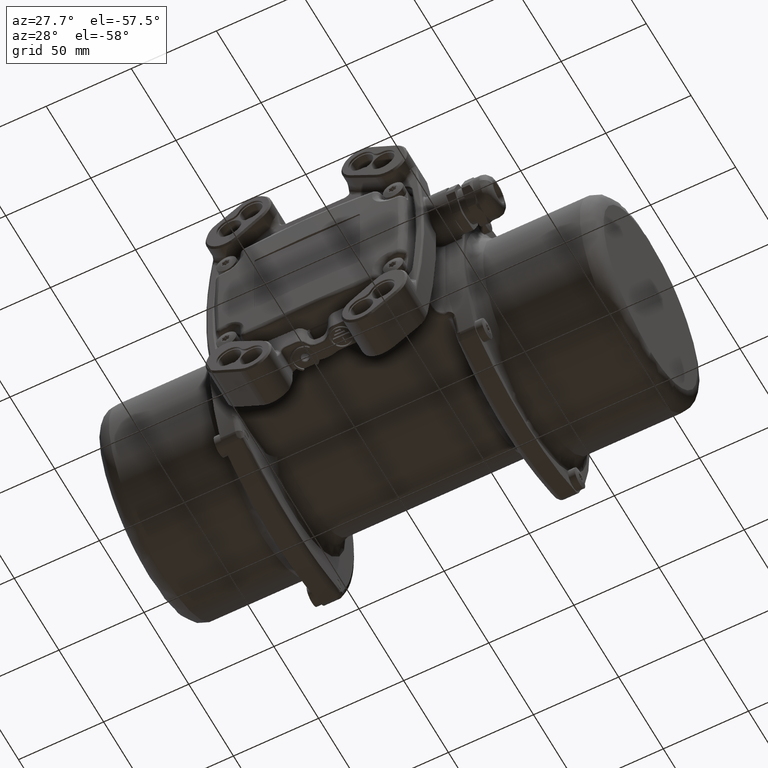
[diagram: clean part render]
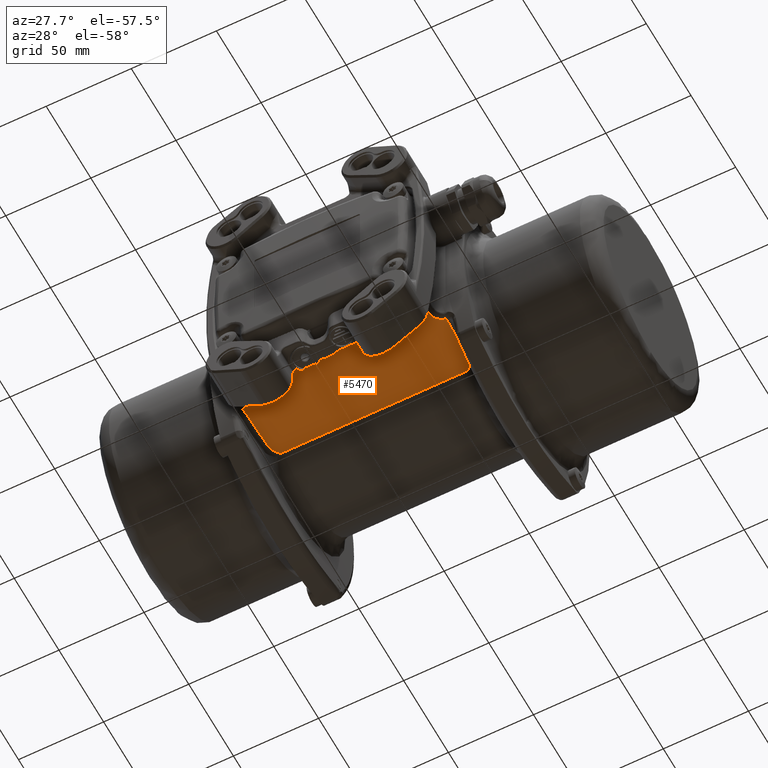
[diagram: same view with one face highlighted and labeled with its STEP entity id]
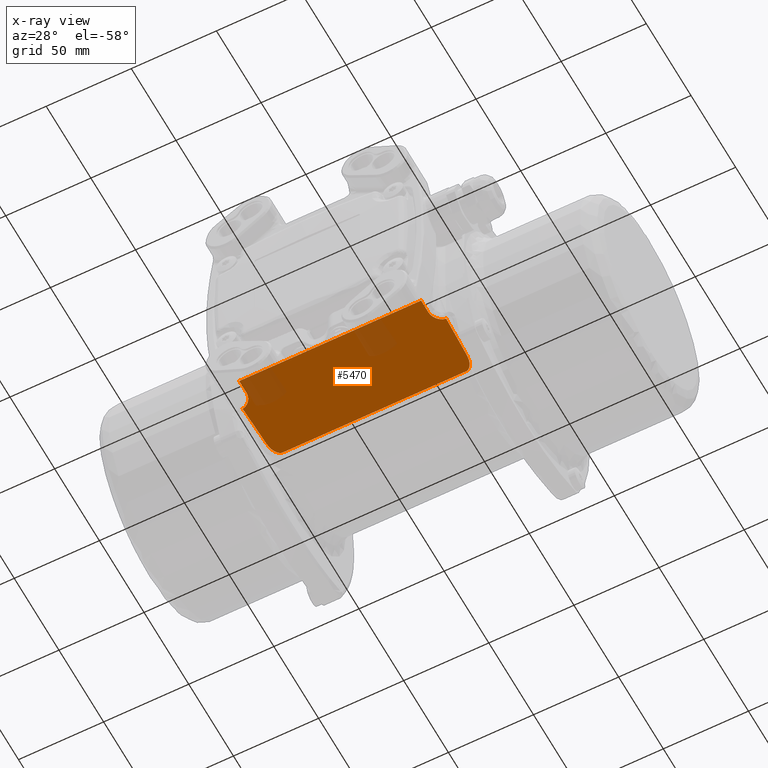
[diagram: x-ray of the same camera — body ghosted, the highlighted face saturated]
A machine part, auxiliary view. The second image highlights one B-rep face of the part: STEP entity #5470.
The next image is the same camera in x-ray: the body ghosted, the highlighted face saturated — about 11% of this face is hidden behind the body in this view.
In plain terms, the highlighted planar face has unit normal (-0, -0, 1).
Its self-contained STEP definition (entity closure, byte-faithful):
#1687 = CARTESIAN_POINT ( 'NONE',  ( 54.26904478347599800, -28.02733593268764900, -42.00000000000000000 ) ) ;
#1974 = CARTESIAN_POINT ( 'NONE',  ( 84.50000000000000000, -28.00000000000000000, -42.00000000000000000 ) ) ;
#2427 = CARTESIAN_POINT ( 'NONE',  ( 59.79435121141880000, -61.48735980314800300, -42.00000000000000000 ) ) ;
#2736 = CARTESIAN_POINT ( 'NONE',  ( -56.82736257883129800, -62.70393072351999600, -42.00000000000000000 ) ) ;
#3247 = CARTESIAN_POINT ( 'NONE',  ( -59.43756898926553600, -53.05175037227265000, -42.00000000000001400 ) ) ;
#3947 = CARTESIAN_POINT ( 'NONE',  ( 57.44151765997829500, -30.79220993703835100, -42.00000000000000000 ) ) ;
#4094 = CARTESIAN_POINT ( 'NONE',  ( -54.25871117828488400, -28.00000000000001400, -41.99999999999999300 ) ) ;
#5470 = ADVANCED_FACE ( 'NONE', ( #27812 ), #59558, .F. ) ;
#6380 = CARTESIAN_POINT ( 'NONE',  ( -58.75959325982411500, -35.09866240626386300, -41.99999999999999300 ) ) ;
#8603 = CARTESIAN_POINT ( 'NONE',  ( -55.71909170430350100, -28.67995840143574400, -41.99999999999998600 ) ) ;
#9171 = CARTESIAN_POINT ( 'NONE',  ( 58.89491927471750200, -61.69407372191539500, -42.00000000000000000 ) ) ;
#9906 = VECTOR ( 'NONE', #123664, 1000.000000000000000 ) ;
#10654 = CARTESIAN_POINT ( 'NONE',  ( 53.83392399097889600, -28.00000000000000000, -42.00000000000000000 ) ) ;
#10820 = CARTESIAN_POINT ( 'NONE',  ( -55.13841179301431300, -28.32637513241102300, -42.00000000000000000 ) ) ;
#10942 = VERTEX_POINT ( 'NONE', #65588 ) ;
#11007 =( BOUNDED_CURVE ( )  B_SPLINE_CURVE ( 3, ( #53230, #123250, #3247, #98340 ),
 .UNSPECIFIED., .F., .F. ) 
 B_SPLINE_CURVE_WITH_KNOTS ( ( 4, 4 ),
 ( 0.0000000000000000000, 1.000000000000000000 ),
 .UNSPECIFIED. ) 
 CURVE ( )  GEOMETRIC_REPRESENTATION_ITEM ( )  RATIONAL_B_SPLINE_CURVE ( ( 0.9999999679836042400, 0.9999999678338763500, 0.9999999676990050100, 0.9999999675891782000 ) ) 
 REPRESENTATION_ITEM ( '' )  );
#11485 = CARTESIAN_POINT ( 'NONE',  ( 55.31436037646639600, -64.10451902522780200, -42.00000000000000000 ) ) ;
#11793 = ORIENTED_EDGE ( 'NONE', *, *, #18064, .F. ) ;
#12622 = VERTEX_POINT ( 'NONE', #21879 ) ;
#13003 = CARTESIAN_POINT ( 'NONE',  ( 56.85878412433390100, -29.87825013822555000, -42.00000000000000000 ) ) ;
#13155 = CARTESIAN_POINT ( 'NONE',  ( -57.93021650183509100, -31.84259759304226000, -42.00000000000000000 ) ) ;
#13733 = CARTESIAN_POINT ( 'NONE',  ( 54.20126284571959700, -65.84102148313441200, -42.00000000000000000 ) ) ;
#13920 = CARTESIAN_POINT ( 'NONE',  ( 54.00000000000000000, -77.50000000000000000, -42.00000000000000000 ) ) ;
#14036 = CARTESIAN_POINT ( 'NONE',  ( -55.94512383386140200, -63.43393234368589600, -42.00000000000000000 ) ) ;
#14974 = VERTEX_POINT ( 'NONE', #125129 ) ;
#17327 = CARTESIAN_POINT ( 'NONE',  ( 53.42825951324709900, -85.50000000000000000, -42.00000000000000000 ) ) ;
#18064 = EDGE_CURVE ( 'NONE', #43394, #81832, #132749, .T. ) ;
#18290 = CARTESIAN_POINT ( 'NONE',  ( 53.42825951325999500, -68.95819422457270800, -42.00000000000000000 ) ) ;
#19813 = CARTESIAN_POINT ( 'NONE',  ( 56.72768731976910300, -29.70336242067885000, -42.00000000000000000 ) ) ;
#19968 = CARTESIAN_POINT ( 'NONE',  ( -57.70707798793059600, -31.33938022319496900, -42.00000000000000700 ) ) ;
#20560 = CARTESIAN_POINT ( 'NONE',  ( 58.25256476904660700, -61.93761853324269900, -42.00000000000000000 ) ) ;
#21879 = CARTESIAN_POINT ( 'NONE',  ( 58.82707166475169900, -36.17614713712605100, -42.00000000000000000 ) ) ;
#22059 = CARTESIAN_POINT ( 'NONE',  ( 55.83703367866000600, -28.76092886263929700, -42.00000000000000000 ) ) ;
#24408 = CARTESIAN_POINT ( 'NONE',  ( -57.52906512749966300, -30.97203903110125700, -42.00000000000000000 ) ) ;
#25478 = CARTESIAN_POINT ( 'NONE',  ( -53.57297445161820100, -67.58762612787461400, -42.00000000000000000 ) ) ;
#26603 = CARTESIAN_POINT ( 'NONE',  ( 58.27122766539199700, -32.79105150845985200, -42.00000000000000000 ) ) ;
#26752 = CARTESIAN_POINT ( 'NONE',  ( -55.40872773025710500, -28.47561109984306100, -42.00000000000000000 ) ) ;
#27644 = CARTESIAN_POINT ( 'NONE',  ( -55.31322817605450100, -64.10581828442009600, -42.00000000000000000 ) ) ;
#27812 = FACE_OUTER_BOUND ( 'NONE', #120966, .T. ) ;
#28598 = DIRECTION ( 'NONE',  ( -5.773171773799138800E-049, 1.000000000000000000, 2.042470651928919900E-017 ) ) ;
#28842 = CARTESIAN_POINT ( 'NONE',  ( 57.98708438775680200, -31.97468965698465500, -42.00000000000000000 ) ) ;
#28991 = CARTESIAN_POINT ( 'NONE',  ( -58.38251797364000600, -33.17328257990040900, -42.00000000000000000 ) ) ;
#29639 = CARTESIAN_POINT ( 'NONE',  ( 55.94780586918800200, -63.43139401440129900, -42.00000000000000000 ) ) ;
#30821 = ORIENTED_EDGE ( 'NONE', *, *, #60505, .F. ) ;
#30909 = EDGE_CURVE ( 'NONE', #118296, #87975, #33215, .T. ) ;
#31325 = CARTESIAN_POINT ( 'NONE',  ( -56.27514953493786700, -29.18617271111895700, -42.00000000000000000 ) ) ;
#31901 = CARTESIAN_POINT ( 'NONE',  ( 54.63626396028370600, -65.03215349386600500, -42.00000000000000000 ) ) ;
#32569 = ORIENTED_EDGE ( 'NONE', *, *, #100471, .F. ) ;
#33215 = B_SPLINE_CURVE_WITH_KNOTS ( 'NONE', 3,
 ( #67553, #44906, #6380, #74353, #101450, #87874, #96883, #115007, #124075, #28991, #60727, #13155, #103778, #19968, #99178, #38135, #117332, #33564, #24408, #51720, #139828, #40356, #63035, #94664, #103676, #42572, #130860, #72041, #92434, #31325, #56287, #69793, #110515, #121783, #78794, #8603, #26752, #49476, #35776, #10820, #90087, #53957, #133077, #4094, #119577 ),
 .UNSPECIFIED., .F., .F.,
 ( 4, 1, 1, 1, 1, 2, 2, 1, 1, 1, 1, 1, 2, 2, 1, 1, 1, 1, 2, 2, 1, 1, 1, 1, 2, 2, 1, 1, 1, 1, 2, 2, 4 ),
 ( 0.0000000000000000000, 0.1250000000000058600, 0.1875000000000077700, 0.2187500000000087400, 0.2343750000000104400, 0.2421875000000112700, 0.2500000000000121000, 0.3750000000000008900, 0.4374999999999966100, 0.4687499999999935600, 0.4843749999999920100, 0.4921874999999911700, 0.4960937499999922300, 0.4999999999999932300, 0.5624999999999956700, 0.5937499999999964500, 0.6093749999999977800, 0.6171874999999980000, 0.6210937499999977800, 0.6249999999999975600, 0.6874999999999973400, 0.7187499999999965600, 0.7343749999999968900, 0.7421874999999977800, 0.7460937499999982200, 0.7499999999999985600, 0.8124999999999992200, 0.8437499999999986700, 0.8593749999999984500, 0.8671874999999983300, 0.8710937499999983300, 0.8749999999999982200, 1.000000000000000000 ),
 .UNSPECIFIED. ) ;
#33564 = CARTESIAN_POINT ( 'NONE',  ( -57.63460209910953600, -31.18797747478625500, -41.99999999999999300 ) ) ;
#34131 = CARTESIAN_POINT ( 'NONE',  ( 55.78292306727760100, -63.59153926862740000, -42.00000000000000000 ) ) ;
#35048 = CARTESIAN_POINT ( 'NONE',  ( 59.43756874971277400, -53.05175038098856500, -42.00000000000000700 ) ) ;
#35776 = CARTESIAN_POINT ( 'NONE',  ( -55.17242207720215000, -28.34369556924050900, -41.99999999999998600 ) ) ;
#36644 = DIRECTION ( 'NONE',  ( 1.000000000000000000, 8.326672684688669100E-017, 6.938893903907229900E-018 ) ) ;
#38135 = CARTESIAN_POINT ( 'NONE',  ( -57.65108654819309200, -31.22198389812086100, -41.99999999999999300 ) ) ;
#38914 = CARTESIAN_POINT ( 'NONE',  ( -59.33656342992420500, -61.57072904322470200, -42.00000000000000000 ) ) ;
#40038 = EDGE_CURVE ( 'NONE', #12622, #118197, #120451, .T. ) ;
#40356 = CARTESIAN_POINT ( 'NONE',  ( -57.08067270815614300, -30.20494823593892500, -42.00000000000000000 ) ) ;
#40939 = CARTESIAN_POINT ( 'NONE',  ( 58.04200526231550600, -62.02857605498029900, -42.00000000000000000 ) ) ;
#41322 = CARTESIAN_POINT ( 'NONE',  ( -54.63320840369990300, -65.03728243523809700, -42.00000000000000000 ) ) ;
#42572 = CARTESIAN_POINT ( 'NONE',  ( -56.98737599456654100, -30.06583039847028600, -42.00000000000000700 ) ) ;
#43394 = VERTEX_POINT ( 'NONE', #103900 ) ;
#44011 = VECTOR ( 'NONE', #36644, 1000.000000000000000 ) ;
#44373 = EDGE_CURVE ( 'NONE', #81832, #90891, #113701, .T. ) ;
#44767 = CARTESIAN_POINT ( 'NONE',  ( 55.48303763874420000, -28.49445605957770100, -42.00000000000000000 ) ) ;
#44906 = CARTESIAN_POINT ( 'NONE',  ( -58.81286648875534000, -35.74354098145139600, -41.99999999999999300 ) ) ;
#45668 = LINE ( 'NONE', #13920, #44011 ) ;
#45780 = CARTESIAN_POINT ( 'NONE',  ( -54.88360541197860000, -64.65267105112928900, -42.00000000000000000 ) ) ;
#48598 = VERTEX_POINT ( 'NONE', #107406 ) ;
#49476 = CARTESIAN_POINT ( 'NONE',  ( -55.25152707322240500, -28.38563456081355700, -41.99999999999999300 ) ) ;
#50212 = VECTOR ( 'NONE', #135506, 1000.000000000000000 ) ;
#51720 = CARTESIAN_POINT ( 'NONE',  ( -57.37342046167133700, -30.67944427711156100, -42.00000000000000700 ) ) ;
#52301 = CARTESIAN_POINT ( 'NONE',  ( 57.42378022697059900, -62.34182539696740100, -42.00000000000000000 ) ) ;
#52616 = CARTESIAN_POINT ( 'NONE',  ( -58.03675445705580000, -62.01954357219160100, -42.00000000000000000 ) ) ;
#52672 = DIRECTION ( 'NONE',  ( 1.000000000000000000, 8.326672684688669100E-017, 6.938893903907229900E-018 ) ) ;
#53230 = CARTESIAN_POINT ( 'NONE',  ( -58.82707171247420100, -36.17614713555894900, -42.00000000000000000 ) ) ;
#53957 = CARTESIAN_POINT ( 'NONE',  ( -55.10593638335170400, -28.31011837607921300, -41.99999999999998600 ) ) ;
#54623 = CARTESIAN_POINT ( 'NONE',  ( 53.72263919546070100, -67.14200724653780100, -42.00000000000000000 ) ) ;
#56287 = CARTESIAN_POINT ( 'NONE',  ( -56.21171969220655000, -29.12249417637528400, -41.99999999999999300 ) ) ;
#57054 = CARTESIAN_POINT ( 'NONE',  ( -58.89368292378280500, -61.69444095512740500, -42.00000000000000000 ) ) ;
#57153 = ORIENTED_EDGE ( 'NONE', *, *, #126941, .F. ) ;
#57256 = CARTESIAN_POINT ( 'NONE',  ( -54.01663894030389900, -66.26751719509530900, -42.00000000000000000 ) ) ;
#58408 = CARTESIAN_POINT ( 'NONE',  ( -53.83392399097859700, -28.00000000000000000, -42.00000000000000000 ) ) ;
#59491 = CARTESIAN_POINT ( 'NONE',  ( -53.42825951324709900, -69.42229072274290000, -42.00000000000000000 ) ) ;
#59558 = PLANE ( 'NONE',  #95912 ) ;
#60505 = EDGE_CURVE ( 'NONE', #90891, #127663, #139533, .T. ) ;
#60727 = CARTESIAN_POINT ( 'NONE',  ( -58.19760343099625300, -32.53899288053543900, -42.00000000000000700 ) ) ;
#60863 = DIRECTION ( 'NONE',  ( 5.773171773799138800E-049, -1.000000000000000000, -2.042470651928919900E-017 ) ) ;
#62124 = EDGE_CURVE ( 'NONE', #14974, #12622, #136847, .T. ) ;
#62879 = CARTESIAN_POINT ( 'NONE',  ( 54.69093902774200400, -28.13118471927990100, -42.00000000000000000 ) ) ;
#63035 = CARTESIAN_POINT ( 'NONE',  ( -57.03018395021067000, -30.12899429393592500, -42.00000000000000000 ) ) ;
#63593 = CARTESIAN_POINT ( 'NONE',  ( 59.33732956010650400, -61.57058952505050800, -42.00000000000000000 ) ) ;
#65293 = LINE ( 'NONE', #94703, #112250 ) ;
#65588 = CARTESIAN_POINT ( 'NONE',  ( -53.42825951324709900, -69.42229072274290000, -42.00000000000000000 ) ) ;
#65833 = CARTESIAN_POINT ( 'NONE',  ( 57.62811800770449400, -62.23035729668099900, -42.00000000000000000 ) ) ;
#67553 = CARTESIAN_POINT ( 'NONE',  ( -58.82707171247420100, -36.17614713555894900, -42.00000000000000000 ) ) ;
#67890 = CARTESIAN_POINT ( 'NONE',  ( -6.846688068540959000, -77.50000000000000000, -42.00000000000000000 ) ) ;
#68131 = CARTESIAN_POINT ( 'NONE',  ( 54.01595166267990300, -66.26985968287318900, -42.00000000000000000 ) ) ;
#68500 = DIRECTION ( 'NONE',  ( -1.000000000000000000, -8.326672684688669100E-017, -6.938893903907229900E-018 ) ) ;
#68703 = CARTESIAN_POINT ( 'NONE',  ( 53.42825951324709900, -77.50000000000000000, -42.00000000000000000 ) ) ;
#69159 = CARTESIAN_POINT ( 'NONE',  ( -58.82707171247420100, -36.17614713555894900, -42.00000000000000000 ) ) ;
#69211 = ORIENTED_EDGE ( 'NONE', *, *, #103052, .T. ) ;
#69608 = VECTOR ( 'NONE', #28598, 1000.000000000000000 ) ;
#69631 = CARTESIAN_POINT ( 'NONE',  ( 58.68420542786040500, -34.45577364352175200, -42.00000000000000000 ) ) ;
#69793 = CARTESIAN_POINT ( 'NONE',  ( -56.18439649936824800, -29.09563773279476000, -42.00000000000000000 ) ) ;
#70352 = CARTESIAN_POINT ( 'NONE',  ( 56.83051727267569900, -62.70185032308110400, -42.00000000000000000 ) ) ;
#70665 = CARTESIAN_POINT ( 'NONE',  ( -56.45859250722010400, -62.97740780327089300, -42.00000000000000000 ) ) ;
#71714 = CARTESIAN_POINT ( 'NONE',  ( 54.00000000000000000, -77.50000000000000000, -42.00000000000000000 ) ) ;
#71883 = CARTESIAN_POINT ( 'NONE',  ( 56.30445617251999100, -29.21092834104745300, -42.00000000000000000 ) ) ;
#72041 = CARTESIAN_POINT ( 'NONE',  ( -56.64664892236319100, -29.59662191180777000, -41.99999999999998600 ) ) ;
#73206 = VECTOR ( 'NONE', #52672, 1000.000000000000000 ) ;
#73973 = ORIENTED_EDGE ( 'NONE', *, *, #62124, .F. ) ;
#74353 = CARTESIAN_POINT ( 'NONE',  ( -58.64150159576439600, -34.35335772061283400, -42.00000000000000000 ) ) ;
#74930 = CARTESIAN_POINT ( 'NONE',  ( 53.46569922929740000, -68.49401586881801100, -42.00000000000000000 ) ) ;
#75832 = CARTESIAN_POINT ( 'NONE',  ( 59.79435121141880000, -61.48735980314800300, -42.00000000000000000 ) ) ;
#78794 = CARTESIAN_POINT ( 'NONE',  ( -55.97819681344674300, -28.89693190028722500, -41.99999999999999300 ) ) ;
#79462 = CARTESIAN_POINT ( 'NONE',  ( 53.42825951324709900, -69.42229072274609800, -42.00000000000000000 ) ) ;
#79767 = CARTESIAN_POINT ( 'NONE',  ( -55.46500839145409900, -63.92937577835940000, -42.00000000000000000 ) ) ;
#80967 = CARTESIAN_POINT ( 'NONE',  ( 54.05383905760750500, -28.00000000544350000, -42.00000000000000000 ) ) ;
#81756 = VERTEX_POINT ( 'NONE', #101779 ) ;
#81832 = VERTEX_POINT ( 'NONE', #67890 ) ;
#83210 = CARTESIAN_POINT ( 'NONE',  ( 56.45074272708880200, -29.37007062304479600, -42.00000000000000000 ) ) ;
#84710 = CARTESIAN_POINT ( 'NONE',  ( 53.42825951324709900, -69.42229072274609800, -42.00000000000000000 ) ) ;
#85177 = ORIENTED_EDGE ( 'NONE', *, *, #85278, .F. ) ;
#85278 = EDGE_CURVE ( 'NONE', #48598, #10942, #89613, .T. ) ;
#86525 = CARTESIAN_POINT ( 'NONE',  ( -57.62074152469040200, -62.22213320383149700, -42.00000000000000000 ) ) ;
#87716 = CARTESIAN_POINT ( 'NONE',  ( 58.82707166475169900, -36.17614713712605100, -42.00000000000000000 ) ) ;
#87874 = CARTESIAN_POINT ( 'NONE',  ( -58.52845928862711100, -33.79746517915418700, -41.99999999999999300 ) ) ;
#87975 = VERTEX_POINT ( 'NONE', #58408 ) ;
#88749 = CARTESIAN_POINT ( 'NONE',  ( -55.78062141848560200, -63.59387132261809200, -42.00000000000000000 ) ) ;
#89613 = B_SPLINE_CURVE_WITH_KNOTS ( 'NONE', 3,
 ( #129411, #38914, #57054, #52616, #86525, #2736, #70665, #14036, #88749, #79767, #27644, #45780, #41322, #120534, #57256, #25478, #95626, #59491 ),
 .UNSPECIFIED., .F., .F.,
 ( 4, 2, 2, 2, 2, 2, 2, 2, 4 ),
 ( 0.0000000000000000000, 0.1249999999999995700, 0.2499999999999991400, 0.3749999999999995600, 0.4374999999999993300, 0.4999999999999991100, 0.6249999999999995600, 0.7499999999999995600, 1.000000000000000000 ),
 .UNSPECIFIED. ) ;
#89949 = CARTESIAN_POINT ( 'NONE',  ( 58.39007788648080300, -33.20401676704234700, -42.00000000000000000 ) ) ;
#90087 = CARTESIAN_POINT ( 'NONE',  ( -55.11571423843655300, -28.31497337823618600, -41.99999999999998600 ) ) ;
#90891 = VERTEX_POINT ( 'NONE', #68703 ) ;
#91612 = ORIENTED_EDGE ( 'NONE', *, *, #30909, .T. ) ;
#92279 = ORIENTED_EDGE ( 'NONE', *, *, #138902, .F. ) ;
#92434 = CARTESIAN_POINT ( 'NONE',  ( -56.40071212483436400, -29.31758377949580900, -41.99999999999998600 ) ) ;
#94664 = CARTESIAN_POINT ( 'NONE',  ( -57.00839002138467700, -30.09672993699314600, -42.00000000000000000 ) ) ;
#94703 = CARTESIAN_POINT ( 'NONE',  ( -53.42825951324709900, -85.50000000000000000, -42.00000000000000000 ) ) ;
#95626 = CARTESIAN_POINT ( 'NONE',  ( -53.42825951479120100, -68.49315351900369800, -42.00000000000000000 ) ) ;
#95912 = AXIS2_PLACEMENT_3D ( 'NONE', #116041, #138665, #68500 ) ;
#96158 = CARTESIAN_POINT ( 'NONE',  ( 59.10417569629819200, -44.61510697885562100, -42.00000000000000700 ) ) ;
#96730 = CARTESIAN_POINT ( 'NONE',  ( 57.22757744820090400, -30.41625907084350200, -42.00000000000000000 ) ) ;
#96883 = CARTESIAN_POINT ( 'NONE',  ( -58.51056227624373200, -33.71827238557293100, -42.00000000000000000 ) ) ;
#98340 = CARTESIAN_POINT ( 'NONE',  ( -59.79435124567049800, -61.48735980170130200, -42.00000000000000000 ) ) ;
#99178 = CARTESIAN_POINT ( 'NONE',  ( -57.66800504252699300, -31.25710058620144600, -41.99999999999999300 ) ) ;
#99309 = LINE ( 'NONE', #1974, #50212 ) ;
#100471 = EDGE_CURVE ( 'NONE', #127663, #14974, #135763, .T. ) ;
#101301 = CARTESIAN_POINT ( 'NONE',  ( 53.83392399097889600, -28.00000000000000000, -42.00000000000000000 ) ) ;
#101450 = CARTESIAN_POINT ( 'NONE',  ( -58.56847087282454800, -33.98246879080423400, -42.00000000000000700 ) ) ;
#101779 = CARTESIAN_POINT ( 'NONE',  ( -53.42825951324709900, -77.50000000000000000, -42.00000000000000000 ) ) ;
#102933 = CARTESIAN_POINT ( 'NONE',  ( 58.82707166475169900, -36.17614713712605100, -42.00000000000000000 ) ) ;
#103052 = EDGE_CURVE ( 'NONE', #87975, #118197, #99309, .T. ) ;
#103676 = CARTESIAN_POINT ( 'NONE',  ( -56.99382609334367800, -30.07528421736174100, -41.99999999999999300 ) ) ;
#103778 = CARTESIAN_POINT ( 'NONE',  ( -57.78360971323527200, -31.50530228973715600, -42.00000000000000700 ) ) ;
#103900 = CARTESIAN_POINT ( 'NONE',  ( -15.15331193145904900, -77.50000000000000000, -42.00000000000000000 ) ) ;
#105826 = CARTESIAN_POINT ( 'NONE',  ( 58.79854094487610200, -35.30726918225339300, -42.00000000000000000 ) ) ;
#106556 = CARTESIAN_POINT ( 'NONE',  ( 55.46630536905229300, -63.92788369949089900, -42.00000000000000000 ) ) ;
#107406 = CARTESIAN_POINT ( 'NONE',  ( -59.79435124567049800, -61.48735980170130200, -42.00000000000000000 ) ) ;
#108857 = CARTESIAN_POINT ( 'NONE',  ( 56.46193627879650000, -62.97474626697660200, -42.00000000000000000 ) ) ;
#110515 = CARTESIAN_POINT ( 'NONE',  ( -56.16615015424823600, -29.07782996085747500, -42.00000000000000000 ) ) ;
#112250 = VECTOR ( 'NONE', #60863, 1000.000000000000000 ) ;
#113701 = LINE ( 'NONE', #122794, #73206 ) ;
#115007 = CARTESIAN_POINT ( 'NONE',  ( -58.49846444785827500, -33.66549818286419800, -42.00000000000001400 ) ) ;
#116041 = CARTESIAN_POINT ( 'NONE',  ( 54.00000000000000000, -85.50000000000000000, -42.00000000000000000 ) ) ;
#117332 = CARTESIAN_POINT ( 'NONE',  ( -57.63976911945852800, -31.19860522017560100, -42.00000000000001400 ) ) ;
#118197 = VERTEX_POINT ( 'NONE', #10654 ) ;
#118296 = VERTEX_POINT ( 'NONE', #69159 ) ;
#119577 = CARTESIAN_POINT ( 'NONE',  ( -53.83392399097859700, -28.00000000000000000, -42.00000000000000000 ) ) ;
#120451 = B_SPLINE_CURVE_WITH_KNOTS ( 'NONE', 3,
 ( #87716, #105826, #69631, #89949, #26603, #28842, #132929, #3947, #96730, #13003, #19813, #83210, #71883, #22059, #44767, #123928, #62879, #1687, #80967, #101301 ),
 .UNSPECIFIED., .F., .F.,
 ( 4, 2, 2, 2, 2, 2, 2, 2, 2, 4 ),
 ( 0.0000000000000000000, 0.2499999999999999400, 0.3749999999999999400, 0.5000000000000000000, 0.6250000000000004400, 0.6874999999999997800, 0.7500000000000000000, 0.8750000000000004400, 0.9374999999999996700, 1.000000000000000000 ),
 .UNSPECIFIED. ) ;
#120534 = CARTESIAN_POINT ( 'NONE',  ( -54.19992292985750000, -65.84407138823900100, -42.00000000000000000 ) ) ;
#120966 = EDGE_LOOP ( 'NONE', ( #11793, #130168, #92279, #85177, #57153, #91612, #69211, #135032, #73973, #32569, #30821, #134781 ) ) ;
#121783 = CARTESIAN_POINT ( 'NONE',  ( -56.15846127621409800, -29.07036916673905200, -41.99999999999999300 ) ) ;
#122794 = CARTESIAN_POINT ( 'NONE',  ( 54.00000000000000000, -77.50000000000000000, -42.00000000000000000 ) ) ;
#123250 = CARTESIAN_POINT ( 'NONE',  ( -59.10417593529081900, -44.61510697116498400, -42.00000000000000700 ) ) ;
#123664 = DIRECTION ( 'NONE',  ( 1.000000000000000000, 8.326672684688669100E-017, 6.938893903907229900E-018 ) ) ;
#123928 = CARTESIAN_POINT ( 'NONE',  ( 54.89835258822680000, -28.20865184138200000, -42.00000000000000000 ) ) ;
#124075 = CARTESIAN_POINT ( 'NONE',  ( -58.49259182150537800, -33.64022252528445000, -42.00000000000000000 ) ) ;
#124493 = EDGE_CURVE ( 'NONE', #81756, #43394, #45668, .T. ) ;
#124651 = CARTESIAN_POINT ( 'NONE',  ( 54.88684420014389800, -64.64826746285210400, -42.00000000000000000 ) ) ;
#125129 = CARTESIAN_POINT ( 'NONE',  ( 59.79435121141880000, -61.48735980314800300, -42.00000000000000000 ) ) ;
#126894 = CARTESIAN_POINT ( 'NONE',  ( 53.61301942575809700, -67.58694152724169200, -42.00000000000000000 ) ) ;
#126941 = EDGE_CURVE ( 'NONE', #118296, #48598, #11007, .T. ) ;
#127663 = VERTEX_POINT ( 'NONE', #84710 ) ;
#129411 = CARTESIAN_POINT ( 'NONE',  ( -59.79435124567049800, -61.48735980170130200, -42.00000000000000000 ) ) ;
#130168 = ORIENTED_EDGE ( 'NONE', *, *, #124493, .F. ) ;
#130860 = CARTESIAN_POINT ( 'NONE',  ( -56.84855752207780500, -29.86359630331782400, -42.00000000000000000 ) ) ;
#132749 = LINE ( 'NONE', #71714, #9906 ) ;
#132929 = CARTESIAN_POINT ( 'NONE',  ( 57.82108986254190300, -31.57025918973820200, -42.00000000000000000 ) ) ;
#133077 = CARTESIAN_POINT ( 'NONE',  ( -54.67839672668534200, -28.10126314320955000, -41.99999999999999300 ) ) ;
#134781 = ORIENTED_EDGE ( 'NONE', *, *, #44373, .F. ) ;
#135032 = ORIENTED_EDGE ( 'NONE', *, *, #40038, .F. ) ;
#135506 = DIRECTION ( 'NONE',  ( 1.000000000000000000, -3.919795306784859900E-017, 6.938893903907229900E-018 ) ) ;
#135763 = B_SPLINE_CURVE_WITH_KNOTS ( 'NONE', 3,
 ( #79462, #18290, #74930, #126894, #54623, #68131, #13733, #31901, #124651, #11485, #106556, #34131, #29639, #108857, #70352, #52301, #65833, #40939, #20560, #9171, #63593, #2427 ),
 .UNSPECIFIED., .F., .F.,
 ( 4, 2, 2, 2, 2, 2, 2, 2, 2, 2, 4 ),
 ( 0.0000000000000000000, 0.1249999999999996300, 0.2499999999999997200, 0.3749999999999991700, 0.4999999999999995000, 0.5624999999999992200, 0.6249999999999997800, 0.7499999999999996700, 0.8124999999999996700, 0.8749999999999998900, 1.000000000000000000 ),
 .UNSPECIFIED. ) ;
#136847 = B_SPLINE_CURVE_WITH_KNOTS ( 'NONE', 3,
 ( #75832, #35048, #96158, #102933 ),
 .UNSPECIFIED., .F., .F.,
 ( 4, 4 ),
 ( 0.0000000000000000000, 1.000000000000000000 ),
 .UNSPECIFIED. ) ;
#138665 = DIRECTION ( 'NONE',  ( -6.938893903907224500E-018, -6.205806994273258700E-017, 1.000000000000000000 ) ) ;
#138902 = EDGE_CURVE ( 'NONE', #10942, #81756, #65293, .T. ) ;
#139533 = LINE ( 'NONE', #17327, #69608 ) ;
#139828 = CARTESIAN_POINT ( 'NONE',  ( -57.18019525345317800, -30.35953788982415300, -41.99999999999999300 ) ) ;